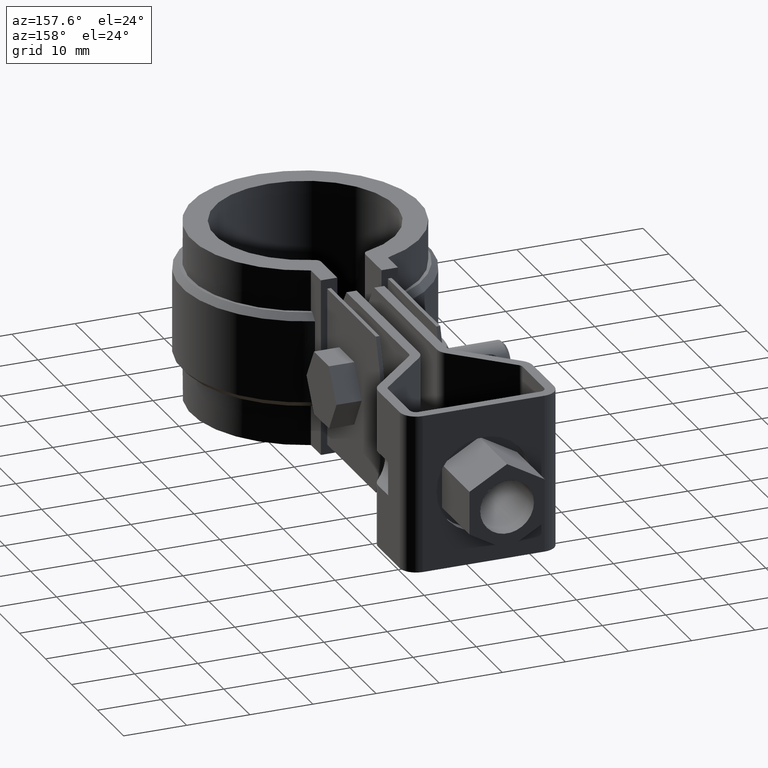
[diagram: clean part render]
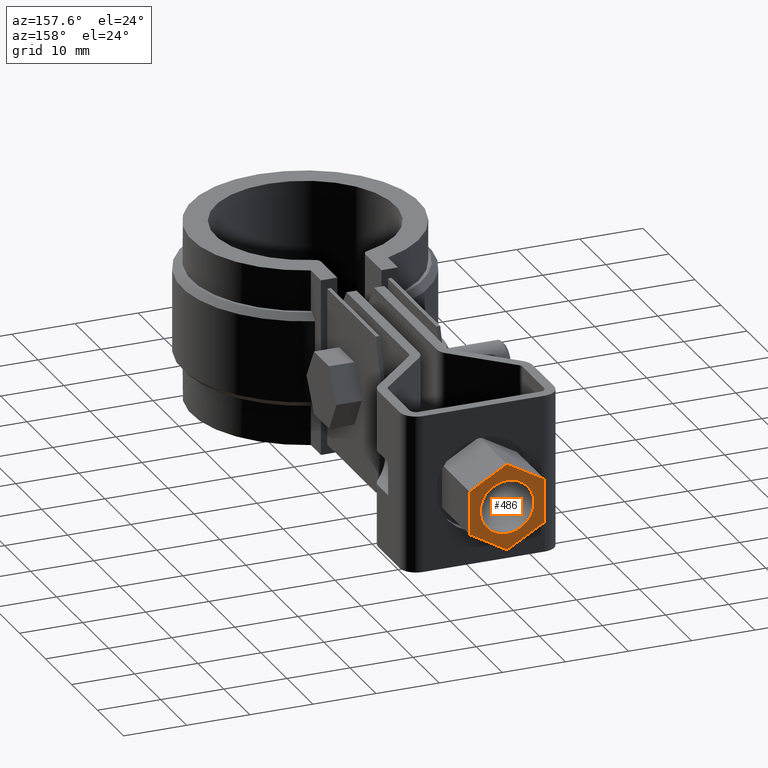
[diagram: same view with one face highlighted and labeled with its STEP entity id]
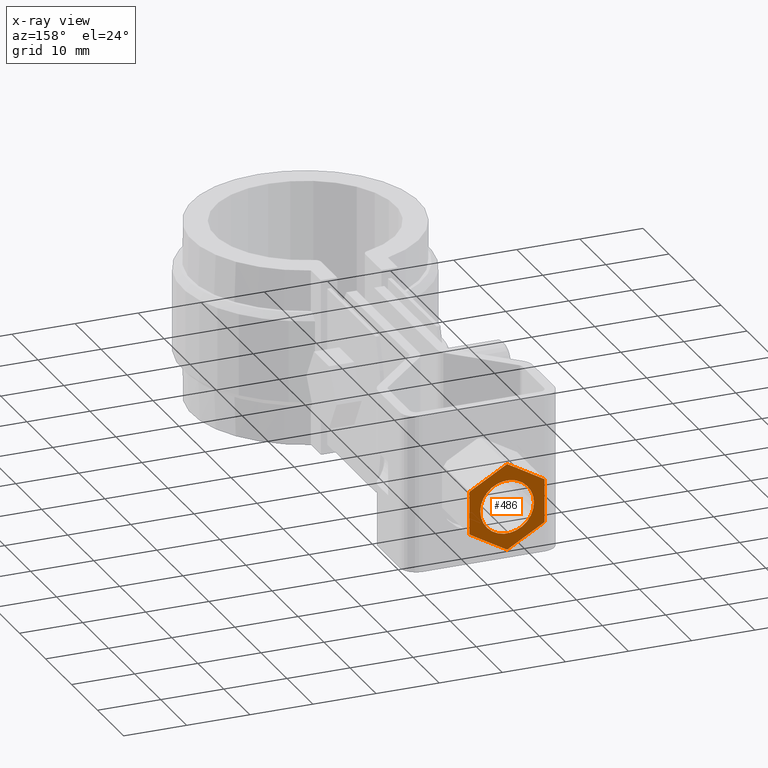
[diagram: x-ray of the same camera — body ghosted, the highlighted face saturated]
A machine part, auxiliary view. The second image highlights one B-rep face of the part: STEP entity #486.
The next image is the same camera in x-ray: the body ghosted, the highlighted face saturated — about 0% of this face is hidden behind the body in this view.
In plain terms, the highlighted planar face has unit normal (0, 1, 0).
Its self-contained STEP definition (entity closure, byte-faithful):
#486 = ADVANCED_FACE( '', ( #885, #886 ), #887, .T. );
#885 = FACE_BOUND( '', #1767, .T. );
#886 = FACE_OUTER_BOUND( '', #1768, .T. );
#887 = PLANE( '', #1769 );
#1767 = EDGE_LOOP( '', ( #4372 ) );
#1768 = EDGE_LOOP( '', ( #4373, #4374, #4375, #4376, #4377, #4378 ) );
#1769 = AXIS2_PLACEMENT_3D( '', #4379, #4380, #4381 );
#4372 = ORIENTED_EDGE( '', *, *, #5122, .T. );
#4373 = ORIENTED_EDGE( '', *, *, #5108, .T. );
#4374 = ORIENTED_EDGE( '', *, *, #5117, .T. );
#4375 = ORIENTED_EDGE( '', *, *, #5119, .T. );
#4376 = ORIENTED_EDGE( '', *, *, #5124, .T. );
#4377 = ORIENTED_EDGE( '', *, *, #5126, .T. );
#4378 = ORIENTED_EDGE( '', *, *, #5127, .T. );
#4379 = CARTESIAN_POINT( '', ( 5.95000012264939, 77.6019465738316, -15.9352340818294 ) );
#4380 = DIRECTION( '', ( 7.94778667583653E-010, 1.00000000000000, 1.31468003180933E-010 ) );
#4381 = DIRECTION( '', ( 0.500000000033094, -2.83534703281139E-010, -0.866025403765332 ) );
#5108 = EDGE_CURVE( '', #6000, #5998, #6001, .T. );
#5117 = EDGE_CURVE( '', #5998, #6014, #6016, .T. );
#5119 = EDGE_CURVE( '', #6014, #6017, #6019, .T. );
#5122 = EDGE_CURVE( '', #6024, #6024, #6025, .T. );
#5124 = EDGE_CURVE( '', #6017, #6026, #6028, .T. );
#5126 = EDGE_CURVE( '', #6026, #6029, #6031, .T. );
#5127 = EDGE_CURVE( '', #6029, #6000, #6032, .T. );
#5998 = VERTEX_POINT( '', #8607 );
#6000 = VERTEX_POINT( '', #8610 );
#6001 = LINE( '', #8611, #8612 );
#6014 = VERTEX_POINT( '', #8631 );
#6016 = LINE( '', #8634, #8635 );
#6017 = VERTEX_POINT( '', #8636 );
#6019 = LINE( '', #8639, #8640 );
#6024 = VERTEX_POINT( '', #8645 );
#6025 = CIRCLE( '', #8646, 4.25000000000000 );
#6026 = VERTEX_POINT( '', #8647 );
#6028 = LINE( '', #8650, #8651 );
#6029 = VERTEX_POINT( '', #8652 );
#6031 = LINE( '', #8655, #8656 );
#6032 = LINE( '', #8657, #8658 );
#8607 = CARTESIAN_POINT( '', ( 5.95000012264939, 77.6019465738316, -15.9352340818294 ) );
#8610 = CARTESIAN_POINT( '', ( 5.95000012238684, 77.6019465729284, -9.06476587847280 ) );
#8611 = CARTESIAN_POINT( '', ( 5.95000012238684, 77.6019465729284, -9.06476587847280 ) );
#8612 = VECTOR( '', #9503, 1000.00000000000 );
#8631 = CARTESIAN_POINT( '', ( 1.22780658158163E-007, 77.6019465790122, -19.3704681837350 ) );
#8634 = CARTESIAN_POINT( '', ( 5.95000012264939, 77.6019465738316, -15.9352340818294 ) );
#8635 = VECTOR( '', #9514, 1000.00000000000 );
#8636 = CARTESIAN_POINT( '', ( -5.94999987735061, 77.6019465832895, -15.9352340822841 ) );
#8639 = CARTESIAN_POINT( '', ( 1.22780659892886E-007, 77.6019465790122, -19.3704681837350 ) );
#8640 = VECTOR( '', #9516, 1000.00000000000 );
#8645 = CARTESIAN_POINT( '', ( 4.25000012251811, 77.6019465747311, -12.4999999802160 ) );
#8646 = AXIS2_PLACEMENT_3D( '', #9523, #9524, #9525 );
#8647 = CARTESIAN_POINT( '', ( -5.94999987761316, 77.6019465823862, -9.06476587892756 ) );
#8650 = CARTESIAN_POINT( '', ( -5.94999987735062, 77.6019465832895, -15.9352340822841 ) );
#8651 = VECTOR( '', #9527, 1000.00000000000 );
#8652 = CARTESIAN_POINT( '', ( 1.22255565037429E-007, 77.6019465772057, -5.62953177702190 ) );
#8655 = CARTESIAN_POINT( '', ( -5.94999987761316, 77.6019465823862, -9.06476587892754 ) );
#8656 = VECTOR( '', #9529, 1000.00000000000 );
#8657 = CARTESIAN_POINT( '', ( 1.22255571108961E-007, 77.6019465772057, -5.62953177702190 ) );
#8658 = VECTOR( '', #9530, 1000.00000000000 );
#9503 = DIRECTION( '', ( 3.82136635906203E-011, 1.31468003150562E-010, -1.00000000000000 ) );
#9514 = DIRECTION( '', ( -0.866025403765332, 7.54032518093023E-010, -0.500000000033094 ) );
#9516 = DIRECTION( '', ( -0.866025403803545, 6.22564514942461E-010, 0.499999999966906 ) );
#9523 = CARTESIAN_POINT( '', ( 1.22518112031477E-007, 77.6019465781089, -12.4999999803785 ) );
#9524 = DIRECTION( '', ( -7.94778667583653E-010, -1.00000000000000, -1.31468003180933E-010 ) );
#9525 = DIRECTION( '', ( 1.00000000000000, -7.94778667588677E-010, 3.82136079749811E-011 ) );
#9527 = DIRECTION( '', ( -3.82132195014105E-011, -1.31468003150562E-010, 1.00000000000000 ) );
#9529 = DIRECTION( '', ( 0.866025403765332, -7.54032518093023E-010, 0.500000000033094 ) );
#9530 = DIRECTION( '', ( 0.866025403803545, -6.22564514942461E-010, -0.499999999966906 ) );